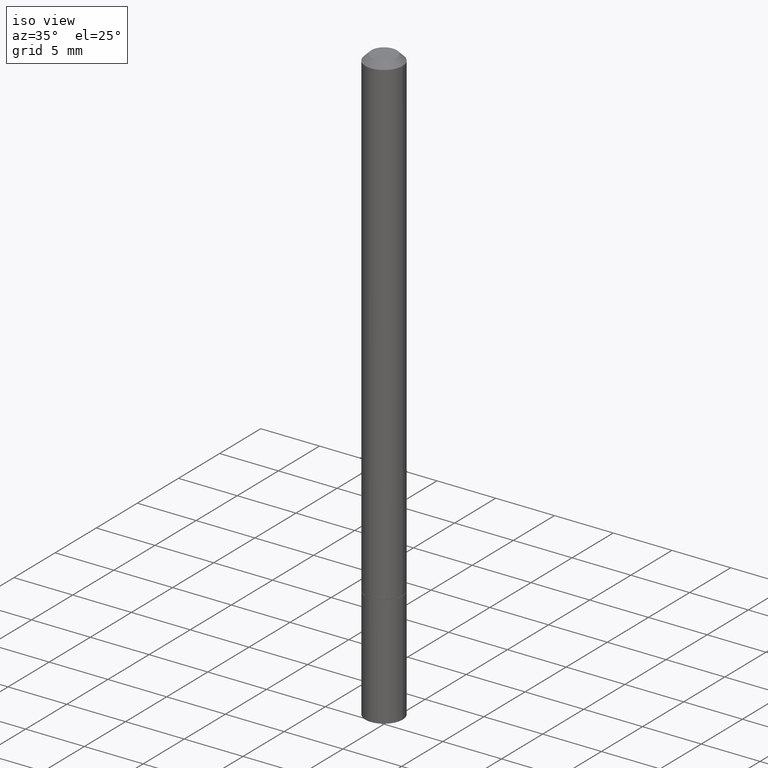
[diagram: clean part render]
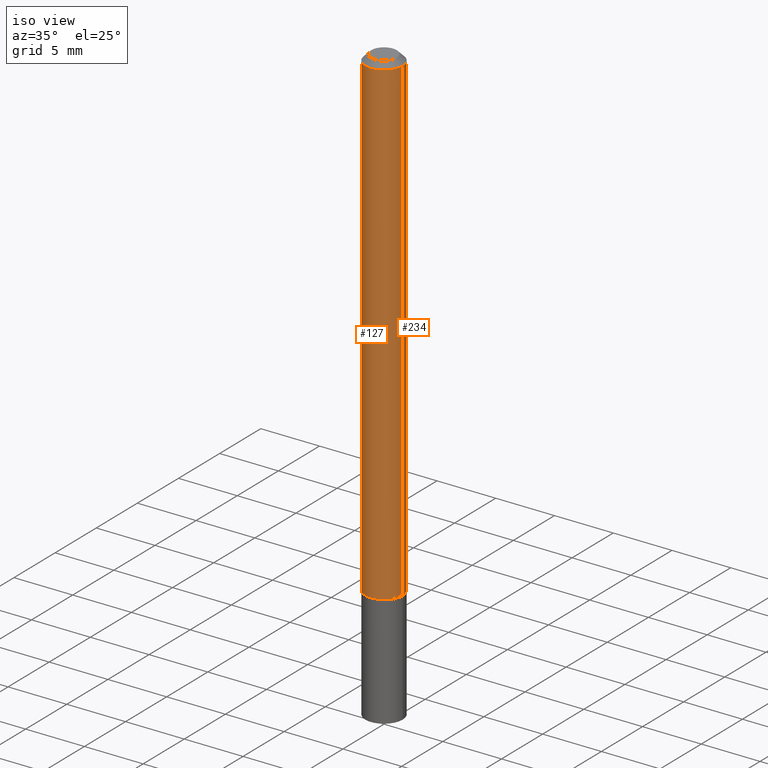
[diagram: same view with one multi-face feature highlighted, each face labeled with its STEP entity id]
A machine part, iso view. The highlighted faces form ONE feature: a constant-radius fillet chain: 2 tangent blend faces with common blend radius 1.5875 mm. The faces share edges in the B-rep.
Their STEP definitions:
[1] entity #127 (Cylinder):
#6 = VECTOR ( 'NONE', #101, 39.37007874015748143 ) ;
#17 = CARTESIAN_POINT ( 'NONE',  ( 0.06249999999999981265, -4.986107516375823445E-16, -0.02000000000000000736 ) ) ;
#20 = CARTESIAN_POINT ( 'NONE',  ( -0.06250000000000001388, -2.425908450678998508E-15, -1.623999999999999888 ) ) ;
#47 = DIRECTION ( 'NONE',  ( -2.445468806185136877E-29, 3.491481338843145188E-15, 1.000000000000000000 ) ) ;
#53 = CARTESIAN_POINT ( 'NONE',  ( 0.06250000000000001388, -6.106600861636660086E-15, -1.623999999999999888 ) ) ;
#54 = CARTESIAN_POINT ( 'NONE',  ( -0.06249999999999981265, 3.666055405785273851E-16, -0.02000000000000000736 ) ) ;
#61 = VECTOR ( 'NONE', #47, 39.37007874015748143 ) ;
#62 = ORIENTED_EDGE ( 'NONE', *, *, #200, .F. ) ;
#66 = ORIENTED_EDGE ( 'NONE', *, *, #341, .F. ) ;
#68 = ORIENTED_EDGE ( 'NONE', *, *, #85, .T. ) ;
#77 = CARTESIAN_POINT ( 'NONE',  ( 0.06249999999999991673, -4.364351673553910778E-16, 3.047610484872455667E-30 ) ) ;
#78 = DIRECTION ( 'NONE',  ( -2.445468806185136597E-29, 3.491481338843145583E-15, 1.000000000000000000 ) ) ;
#85 = EDGE_CURVE ( 'NONE', #351, #288, #338, .T. ) ;
#101 = DIRECTION ( 'NONE',  ( -2.445468806185136877E-29, 3.491481338843145188E-15, 1.000000000000000000 ) ) ;
#124 = VERTEX_POINT ( 'NONE', #17 ) ;
#125 = ORIENTED_EDGE ( 'NONE', *, *, #204, .T. ) ;
#127 = ADVANCED_FACE ( 'NONE', ( #333 ), #130, .T. ) ;
#130 = CYLINDRICAL_SURFACE ( 'NONE', #249, 0.06249999999999991673 ) ;
#131 = CARTESIAN_POINT ( 'NONE',  ( 4.890937612370274910E-31, -6.982962677686295307E-17, -0.02000000000000000736 ) ) ;
#140 = LINE ( 'NONE', #222, #61 ) ;
#163 = DIRECTION ( 'NONE',  ( -2.445468806185136597E-29, 3.491481338843145583E-15, 1.000000000000000000 ) ) ;
#165 = DIRECTION ( 'NONE',  ( -2.445468806185136597E-29, 3.491481338843145583E-15, 1.000000000000000000 ) ) ;
#166 = DIRECTION ( 'NONE',  ( 1.000000000000000000, -6.982962677686266711E-15, 4.876176775795935793E-29 ) ) ;
#190 = DIRECTION ( 'NONE',  ( 1.000000000000000000, -6.982962677686261189E-15, 0.000000000000000000 ) ) ;
#200 = EDGE_CURVE ( 'NONE', #205, #124, #361, .T. ) ;
#204 = EDGE_CURVE ( 'NONE', #288, #124, #365, .T. ) ;
#205 = VERTEX_POINT ( 'NONE', #54 ) ;
#212 = EDGE_LOOP ( 'NONE', ( #66, #68, #125, #62 ) ) ;
#222 = CARTESIAN_POINT ( 'NONE',  ( -0.06249999999999991673, 4.440892098500620245E-16, -3.074334431409311910E-30 ) ) ;
#246 = CARTESIAN_POINT ( 'NONE',  ( 0.000000000000000000, 0.000000000000000000, 0.000000000000000000 ) ) ;
#248 = CARTESIAN_POINT ( 'NONE',  ( 3.971441341244661927E-29, -5.670165694281268417E-15, -1.623999999999999888 ) ) ;
#249 = AXIS2_PLACEMENT_3D ( 'NONE', #246, #78, #166 ) ;
#278 = AXIS2_PLACEMENT_3D ( 'NONE', #248, #163, #190 ) ;
#281 = DIRECTION ( 'NONE',  ( 1.000000000000000000, -6.982962677686266711E-15, 0.000000000000000000 ) ) ;
#287 = AXIS2_PLACEMENT_3D ( 'NONE', #131, #165, #281 ) ;
#288 = VERTEX_POINT ( 'NONE', #53 ) ;
#333 = FACE_OUTER_BOUND ( 'NONE', #212, .T. ) ;
#338 = CIRCLE ( 'NONE', #278, 0.06250000000000001388 ) ;
#341 = EDGE_CURVE ( 'NONE', #351, #205, #140, .T. ) ;
#351 = VERTEX_POINT ( 'NONE', #20 ) ;
#361 = CIRCLE ( 'NONE', #287, 0.06249999999999981265 ) ;
#365 = LINE ( 'NONE', #77, #6 ) ;
[2] entity #234 (Cylinder):
#1 = AXIS2_PLACEMENT_3D ( 'NONE', #223, #171, #360 ) ;
#6 = VECTOR ( 'NONE', #101, 39.37007874015748143 ) ;
#15 = CIRCLE ( 'NONE', #1, 0.06250000000000001388 ) ;
#17 = CARTESIAN_POINT ( 'NONE',  ( 0.06249999999999981265, -4.986107516375823445E-16, -0.02000000000000000736 ) ) ;
#18 = DIRECTION ( 'NONE',  ( -2.445468806185136597E-29, 3.491481338843145583E-15, 1.000000000000000000 ) ) ;
#20 = CARTESIAN_POINT ( 'NONE',  ( -0.06250000000000001388, -2.425908450678998508E-15, -1.623999999999999888 ) ) ;
#29 = CIRCLE ( 'NONE', #202, 0.06249999999999981265 ) ;
#41 = ORIENTED_EDGE ( 'NONE', *, *, #341, .T. ) ;
#47 = DIRECTION ( 'NONE',  ( -2.445468806185136877E-29, 3.491481338843145188E-15, 1.000000000000000000 ) ) ;
#53 = CARTESIAN_POINT ( 'NONE',  ( 0.06250000000000001388, -6.106600861636660086E-15, -1.623999999999999888 ) ) ;
#54 = CARTESIAN_POINT ( 'NONE',  ( -0.06249999999999981265, 3.666055405785273851E-16, -0.02000000000000000736 ) ) ;
#61 = VECTOR ( 'NONE', #47, 39.37007874015748143 ) ;
#73 = DIRECTION ( 'NONE',  ( -2.445468806185136597E-29, 3.491481338843145583E-15, 1.000000000000000000 ) ) ;
#77 = CARTESIAN_POINT ( 'NONE',  ( 0.06249999999999991673, -4.364351673553910778E-16, 3.047610484872455667E-30 ) ) ;
#101 = DIRECTION ( 'NONE',  ( -2.445468806185136877E-29, 3.491481338843145188E-15, 1.000000000000000000 ) ) ;
#123 = ORIENTED_EDGE ( 'NONE', *, *, #312, .F. ) ;
#124 = VERTEX_POINT ( 'NONE', #17 ) ;
#140 = LINE ( 'NONE', #222, #61 ) ;
#171 = DIRECTION ( 'NONE',  ( -2.445468806185136597E-29, 3.491481338843145583E-15, 1.000000000000000000 ) ) ;
#202 = AXIS2_PLACEMENT_3D ( 'NONE', #331, #73, #297 ) ;
#204 = EDGE_CURVE ( 'NONE', #288, #124, #365, .T. ) ;
#205 = VERTEX_POINT ( 'NONE', #54 ) ;
#220 = CARTESIAN_POINT ( 'NONE',  ( 0.000000000000000000, 0.000000000000000000, 0.000000000000000000 ) ) ;
#222 = CARTESIAN_POINT ( 'NONE',  ( -0.06249999999999991673, 4.440892098500620245E-16, -3.074334431409311910E-30 ) ) ;
#223 = CARTESIAN_POINT ( 'NONE',  ( 3.971441341244661927E-29, -5.670165694281268417E-15, -1.623999999999999888 ) ) ;
#234 = ADVANCED_FACE ( 'NONE', ( #275 ), #337, .T. ) ;
#253 = EDGE_CURVE ( 'NONE', #288, #351, #15, .T. ) ;
#256 = AXIS2_PLACEMENT_3D ( 'NONE', #220, #18, #282 ) ;
#275 = FACE_OUTER_BOUND ( 'NONE', #323, .T. ) ;
#282 = DIRECTION ( 'NONE',  ( 1.000000000000000000, -6.982962677686266711E-15, 4.876176775795935793E-29 ) ) ;
#286 = ORIENTED_EDGE ( 'NONE', *, *, #253, .T. ) ;
#288 = VERTEX_POINT ( 'NONE', #53 ) ;
#297 = DIRECTION ( 'NONE',  ( 1.000000000000000000, -6.982962677686266711E-15, 0.000000000000000000 ) ) ;
#312 = EDGE_CURVE ( 'NONE', #124, #205, #29, .T. ) ;
#320 = ORIENTED_EDGE ( 'NONE', *, *, #204, .F. ) ;
#323 = EDGE_LOOP ( 'NONE', ( #286, #41, #123, #320 ) ) ;
#331 = CARTESIAN_POINT ( 'NONE',  ( 4.890937612370274910E-31, -6.982962677686295307E-17, -0.02000000000000000736 ) ) ;
#337 = CYLINDRICAL_SURFACE ( 'NONE', #256, 0.06249999999999991673 ) ;
#341 = EDGE_CURVE ( 'NONE', #351, #205, #140, .T. ) ;
#351 = VERTEX_POINT ( 'NONE', #20 ) ;
#360 = DIRECTION ( 'NONE',  ( 1.000000000000000000, -6.982962677686261189E-15, 0.000000000000000000 ) ) ;
#365 = LINE ( 'NONE', #77, #6 ) ;